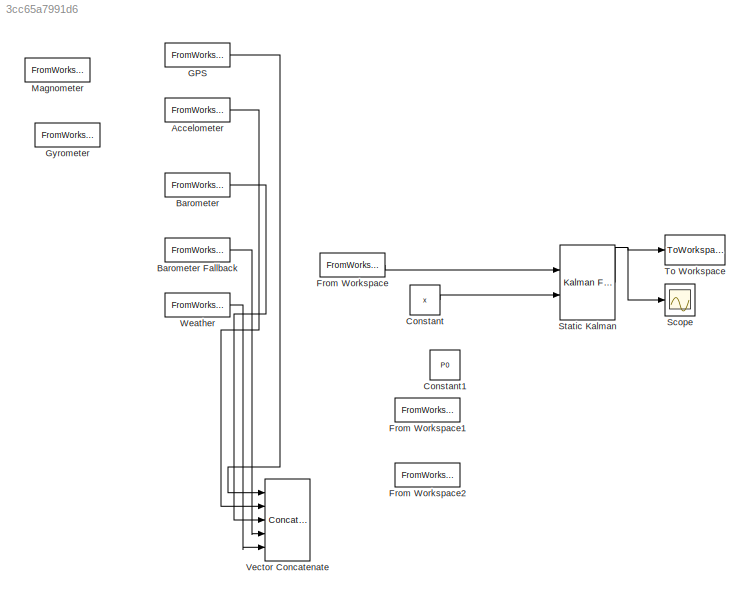
MODEL slx_3cc65a7991d6
KIND model
CONFIG AbsTol = auto
CONFIG EnableMultiTasking = off
CONFIG FixedStep = auto
CONFIG MaxStep = auto
CONFIG MinStep = auto
CONFIG RelTol = 1e-3
CONFIG SampleTimeConstraint = Unconstrained
CONFIG Solver = VariableStepAuto
CONFIG SolverName = VariableStepAuto
CONFIG StartTime = 0.0
CONFIG StopTime = 10.0
BLOCK [FromWorkspace] Accelometer
  SampleTime = 0
  VariableName = a_mes
  ZeroCross = on
BLOCK [FromWorkspace] Barometer 
  SampleTime = 0
  VariableName = p_mes_1
  ZeroCross = on
BLOCK [FromWorkspace] Barometer Fallback 
  SampleTime = 0
  VariableName = p_mes_2
  ZeroCross = on
BLOCK [Constant] Constant
  Value = x
BLOCK [Constant] Constant1
  Value = P0
BLOCK [FromWorkspace] From Workspace
  Interpolate = off
  OutputAfterFinalValue = Holding final value
  SampleTime = Tau
  VariableName = y_t
  ZeroCross = on
BLOCK [FromWorkspace] From Workspace1
  SampleTime = Tau
  VariableName = Q_dyn_t
  ZeroCross = on
BLOCK [FromWorkspace] From Workspace2
  SampleTime = Tau
  VariableName = R_dyn_t
  ZeroCross = on
BLOCK [FromWorkspace] GPS 
  Interpolate = off
  OutputAfterFinalValue = Holding final value
  SampleTime = Tau
  VariableName = h_mes_GPS
  ZeroCross = on
BLOCK [FromWorkspace] Gyrometer 
  SampleTime = 0
  VariableName = simin
  ZeroCross = on
BLOCK [FromWorkspace] Magnometer 
  SampleTime = 0
  VariableName = simin
  ZeroCross = on
BLOCK [Scope] Scope
  NumInputPorts = 1
  Ports = [1]
  ScopeSpecificationString = Simulink.scopes.TimeScopeBlockCfg('CurrentConfiguration', extmgr.ConfigurationSet(extmgr.Configuration('Core','General UI',true),extmgr.Configuration('Core','Source UI',true),extmgr.Configuration('Sources','WiredSimulink',true),extmgr.Configuration('Visuals','Time Domain',true,'SerializedDisplays',{struct('MinYLimReal','-405.45822','MaxYLimReal','3166.29039','YLabelReal','','MinYLimMag',' 0.00000'...<+1472ch>
BLOCK [Reference] Static Kalman  REF=ctrlSharedLib/Kalman Filter
  Ports = [2, 1]
  SourceBlock = ctrlSharedLib/Kalman Filter
  SourceProductBaseCode = CT
  SourceProductName = Control System Toolbox
  SourceType = ctrlKalmanFilter
BLOCK [ToWorkspace] To Workspace
  FixptAsFi = on
  MaxDataPoints = inf
  Ports = [1]
  SampleTime = -1
  Save2DSignal = 3-D array (concatenate along third dimension)
  SaveFormat = Structure With Time
  VariableName = X_estimatd
BLOCK [Concatenate] Vector Concatenate
  ConcatenateDimension = 3
  Mode = Multidimensional array
  NumInputs = 5
  Ports = [5, 1]
BLOCK [FromWorkspace] Weather 
  SampleTime = 0
  VariableName = T
  ZeroCross = on
LINE Accelometer:1 -> Vector Concatenate:2
LINE Barometer :1 -> Vector Concatenate:3
LINE Barometer Fallback :1 -> Vector Concatenate:4
LINE Constant:1 -> Static Kalman:2
LINE From Workspace:1 -> Static Kalman:1
LINE GPS :1 -> Vector Concatenate:1
NET Static Kalman:1 -> Scope:1, To Workspace:1
LINE Weather :1 -> Vector Concatenate:5
note: NET lines group one-source signal fan-out (src -> all destinations, sorted); 1:1 wires keep LINE
